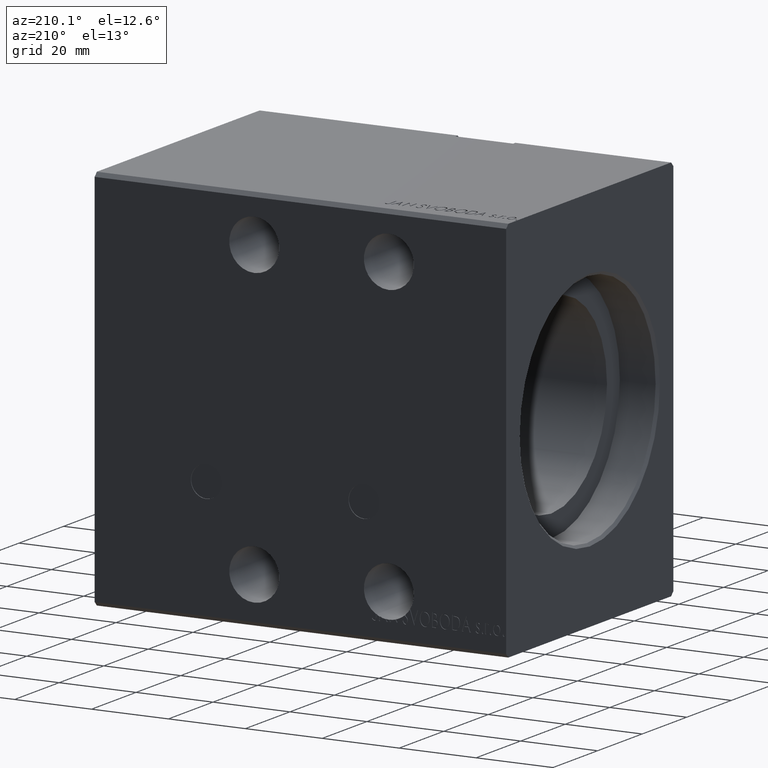
[diagram: clean part render]
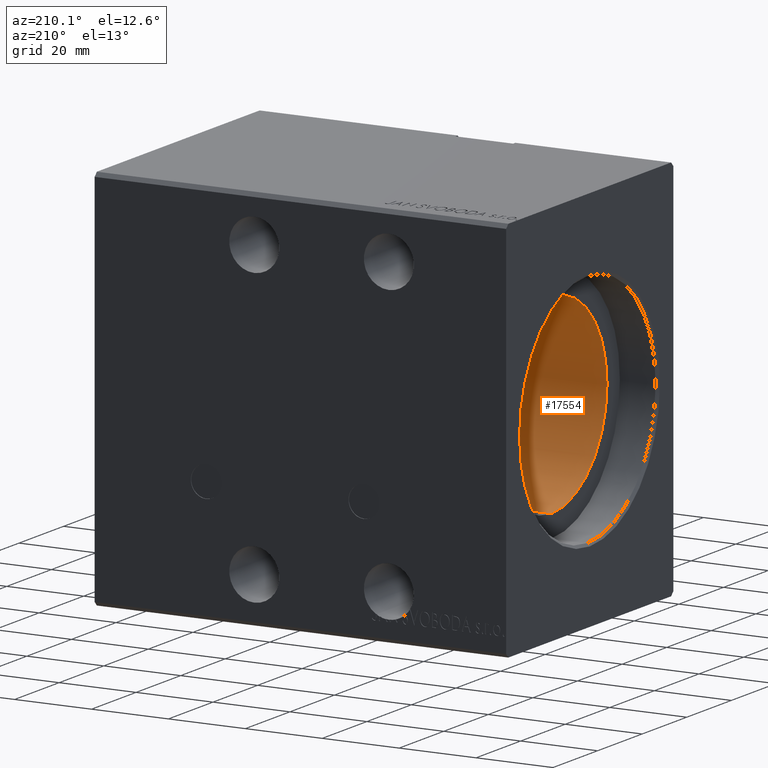
[diagram: same view with one face highlighted and labeled with its STEP entity id]
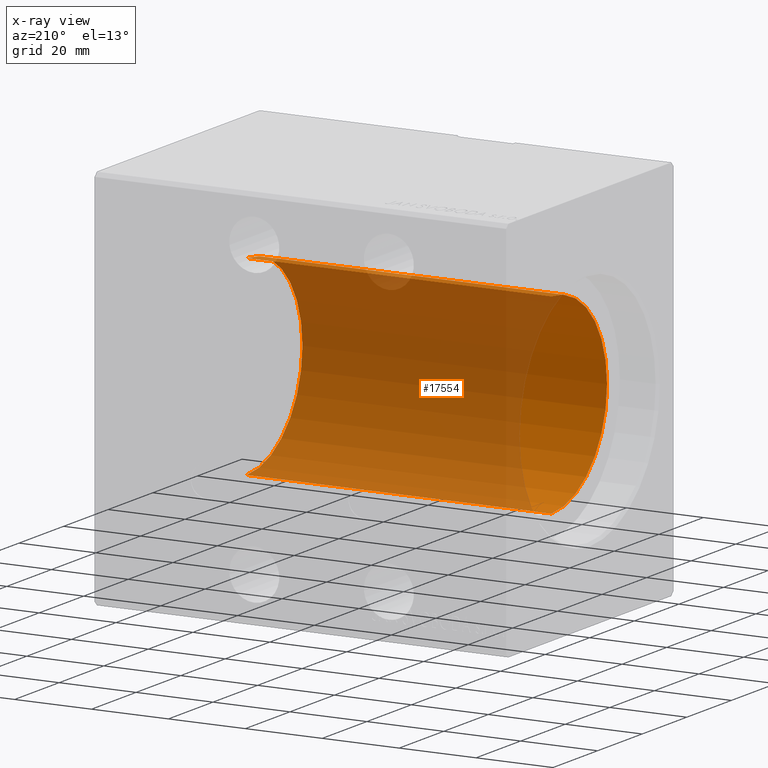
[diagram: x-ray of the same camera — body ghosted, the highlighted face saturated]
A machine part, auxiliary view. The second image highlights one B-rep face of the part: STEP entity #17554.
The next image is the same camera in x-ray: the body ghosted, the highlighted face saturated — about 79% of this face is hidden behind the body in this view.
In plain terms, the highlighted cylindrical surface (partial cylindrical patch) has radius 25 mm, axis along (-1, -0, -0).
Its self-contained STEP definition (entity closure, byte-faithful):
#2783 = FACE_OUTER_BOUND ( 'NONE', #13884, .T. ) ;
#3080 = LINE ( 'NONE', #41012, #6283 ) ;
#5786 = DIRECTION ( 'NONE',  ( -1.000000000000000000, -0.000000000000000000, -0.000000000000000000 ) ) ;
#6283 = VECTOR ( 'NONE', #5786, 1000.000000000000000 ) ;
#7146 = EDGE_CURVE ( 'NONE', #28938, #13801, #26026, .T. ) ;
#8228 = AXIS2_PLACEMENT_3D ( 'NONE', #21298, #8840, #15272 ) ;
#8840 = DIRECTION ( 'NONE',  ( -1.000000000000000000, 0.000000000000000000, 0.000000000000000000 ) ) ;
#9026 = ORIENTED_EDGE ( 'NONE', *, *, #30684, .T. ) ;
#9828 = CYLINDRICAL_SURFACE ( 'NONE', #38072, 25.00000000000000000 ) ;
#10494 = CARTESIAN_POINT ( 'NONE',  ( 9.999999999999994671, 3.061616997868383043E-15, -25.00000000000000000 ) ) ;
#13091 = CARTESIAN_POINT ( 'NONE',  ( 9.999999999999994671, 0.000000000000000000, 25.00000000000000000 ) ) ;
#13801 = VERTEX_POINT ( 'NONE', #13091 ) ;
#13884 = EDGE_LOOP ( 'NONE', ( #32735, #33251, #9026, #18743 ) ) ;
#13944 = EDGE_CURVE ( 'NONE', #21406, #28938, #33347, .T. ) ;
#15272 = DIRECTION ( 'NONE',  ( 0.000000000000000000, 0.000000000000000000, 1.000000000000000000 ) ) ;
#15708 = CARTESIAN_POINT ( 'NONE',  ( 89.20000000000000284, 3.061616997868383043E-15, -25.00000000000000000 ) ) ;
#16179 = CIRCLE ( 'NONE', #8228, 25.00000000000000000 ) ;
#17218 = CARTESIAN_POINT ( 'NONE',  ( 89.20000000000000284, 0.000000000000000000, 0.000000000000000000 ) ) ;
#17554 = ADVANCED_FACE ( 'NONE', ( #2783 ), #9828, .F. ) ;
#18412 = VERTEX_POINT ( 'NONE', #10494 ) ;
#18743 = ORIENTED_EDGE ( 'NONE', *, *, #7146, .F. ) ;
#21236 = VECTOR ( 'NONE', #22933, 1000.000000000000000 ) ;
#21298 = CARTESIAN_POINT ( 'NONE',  ( 9.999999999999994671, 0.000000000000000000, 0.000000000000000000 ) ) ;
#21406 = VERTEX_POINT ( 'NONE', #15708 ) ;
#22933 = DIRECTION ( 'NONE',  ( -1.000000000000000000, -0.000000000000000000, -0.000000000000000000 ) ) ;
#26026 = LINE ( 'NONE', #38661, #21236 ) ;
#28071 = DIRECTION ( 'NONE',  ( -1.000000000000000000, -0.000000000000000000, -0.000000000000000000 ) ) ;
#28282 = CARTESIAN_POINT ( 'NONE',  ( 89.20000000000000284, 0.000000000000000000, 0.000000000000000000 ) ) ;
#28938 = VERTEX_POINT ( 'NONE', #29557 ) ;
#29557 = CARTESIAN_POINT ( 'NONE',  ( 89.20000000000000284, 0.000000000000000000, 25.00000000000000000 ) ) ;
#30684 = EDGE_CURVE ( 'NONE', #18412, #13801, #16179, .T. ) ;
#31972 = DIRECTION ( 'NONE',  ( 0.000000000000000000, 0.000000000000000000, 1.000000000000000000 ) ) ;
#32735 = ORIENTED_EDGE ( 'NONE', *, *, #13944, .F. ) ;
#33251 = ORIENTED_EDGE ( 'NONE', *, *, #33291, .T. ) ;
#33291 = EDGE_CURVE ( 'NONE', #21406, #18412, #3080, .T. ) ;
#33347 = CIRCLE ( 'NONE', #39986, 25.00000000000000000 ) ;
#36495 = DIRECTION ( 'NONE',  ( 0.000000000000000000, 0.000000000000000000, 1.000000000000000000 ) ) ;
#38072 = AXIS2_PLACEMENT_3D ( 'NONE', #28282, #28071, #31972 ) ;
#38661 = CARTESIAN_POINT ( 'NONE',  ( 89.20000000000000284, 0.000000000000000000, 25.00000000000000000 ) ) ;
#38980 = DIRECTION ( 'NONE',  ( -1.000000000000000000, 0.000000000000000000, 0.000000000000000000 ) ) ;
#39986 = AXIS2_PLACEMENT_3D ( 'NONE', #17218, #38980, #36495 ) ;
#41012 = CARTESIAN_POINT ( 'NONE',  ( 89.20000000000000284, 3.061616997868383043E-15, -25.00000000000000000 ) ) ;